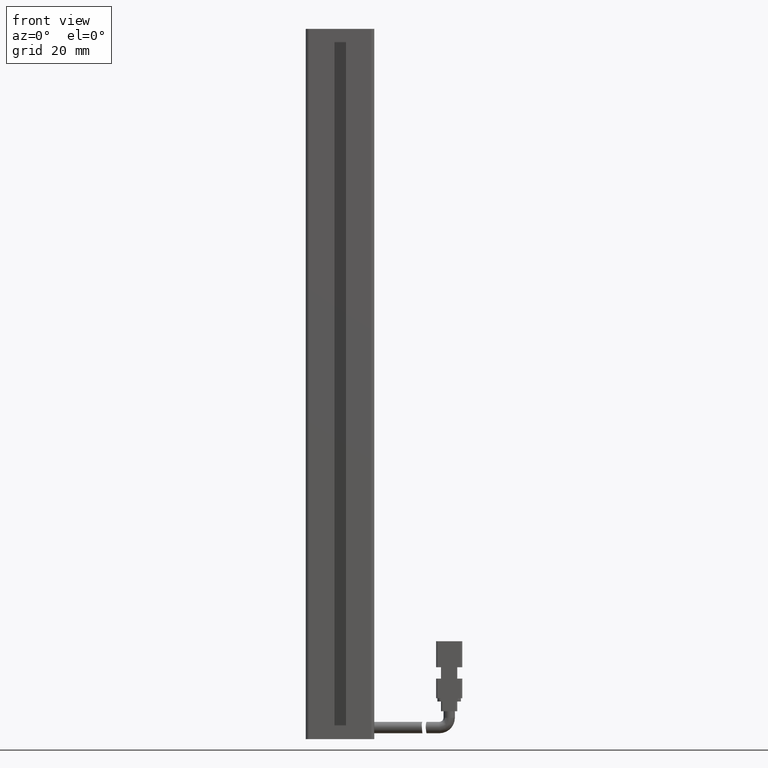
[diagram: clean part render]
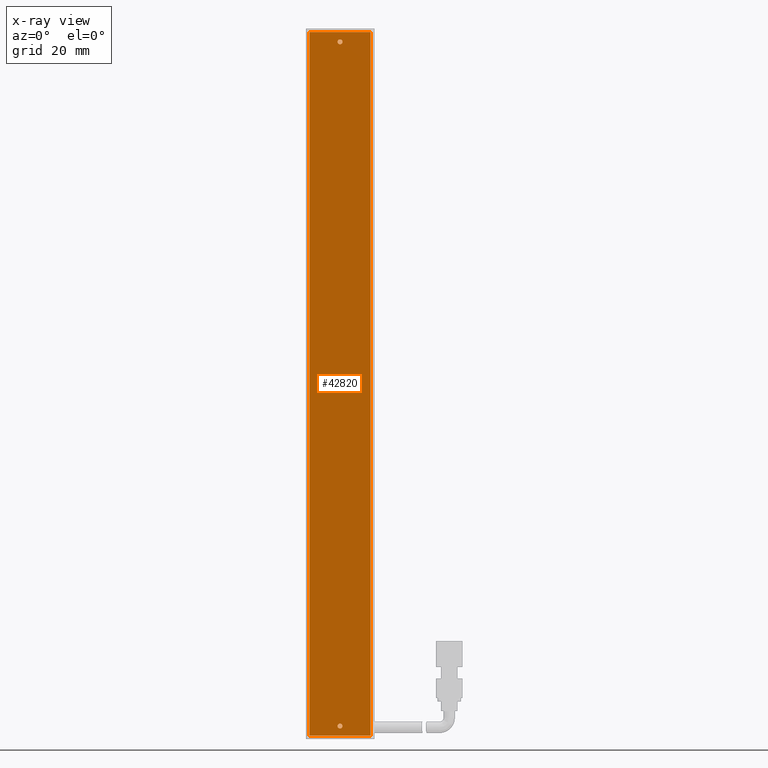
[diagram: x-ray — body ghosted, one internal face saturated and labeled with its STEP entity id]
A machine part, front view, then the same camera in x-ray: the body is ghosted and one INTERNAL B-rep face — a face not visible from any outside direction — is saturated and labeled: STEP entity #42820.
In plain terms, the highlighted planar face has unit normal (-0, 1, 0).
Its self-contained STEP definition (entity closure, byte-faithful):
#526 = LINE ( 'NONE', #14560, #18222 ) ;
#720 = FACE_BOUND ( 'NONE', #28527, .T. ) ;
#1345 = ORIENTED_EDGE ( 'NONE', *, *, #17119, .F. ) ;
#1915 = VECTOR ( 'NONE', #14967, 1000.000000000000000 ) ;
#2809 = CIRCLE ( 'NONE', #16070, 0.7500000000000006700 ) ;
#2921 = EDGE_CURVE ( 'NONE', #38463, #40252, #24808, .T. ) ;
#3285 = AXIS2_PLACEMENT_3D ( 'NONE', #6330, #14241, #18782 ) ;
#3453 = CARTESIAN_POINT ( 'NONE',  ( 50.27537974683542600, 32.09073232304837100, -7.000000000000006200 ) ) ;
#3562 = DIRECTION ( 'NONE',  ( 0.0000000000000000000, 0.0000000000000000000, 1.000000000000000000 ) ) ;
#4278 = CIRCLE ( 'NONE', #33897, 0.7500000000000006700 ) ;
#4717 = DIRECTION ( 'NONE',  ( -0.0000000000000000000, -1.000000000000000000, -0.0000000000000000000 ) ) ;
#4883 = CARTESIAN_POINT ( 'NONE',  ( 31.57537974683539900, 32.09073232304837100, -223.0000000000000000 ) ) ;
#5682 = EDGE_CURVE ( 'NONE', #23849, #46217, #15129, .T. ) ;
#6114 = ORIENTED_EDGE ( 'NONE', *, *, #41738, .F. ) ;
#6166 = ORIENTED_EDGE ( 'NONE', *, *, #32990, .F. ) ;
#6248 = LINE ( 'NONE', #28412, #45681 ) ;
#6330 = CARTESIAN_POINT ( 'NONE',  ( 40.92537974683541800, 32.09073232304837100, -10.00000000000000900 ) ) ;
#7118 = LINE ( 'NONE', #14604, #1915 ) ;
#7183 = ORIENTED_EDGE ( 'NONE', *, *, #5682, .F. ) ;
#7466 = CIRCLE ( 'NONE', #3285, 0.7500000000000006700 ) ;
#7509 = DIRECTION ( 'NONE',  ( 1.000000000000000000, 0.0000000000000000000, -1.548860246407863500E-017 ) ) ;
#12013 = VERTEX_POINT ( 'NONE', #31245 ) ;
#14218 = CARTESIAN_POINT ( 'NONE',  ( 50.27537974683541900, 32.09073232304837100, -223.0000000000000000 ) ) ;
#14241 = DIRECTION ( 'NONE',  ( -0.0000000000000000000, -1.000000000000000000, -0.0000000000000000000 ) ) ;
#14560 = CARTESIAN_POINT ( 'NONE',  ( 31.57537974683539900, 32.09073232304837100, -7.000000000000006200 ) ) ;
#14604 = CARTESIAN_POINT ( 'NONE',  ( 50.27537974683542600, 32.09073232304837100, -7.000000000000006200 ) ) ;
#14967 = DIRECTION ( 'NONE',  ( -1.548860246407863500E-017, -0.0000000000000000000, -1.000000000000000000 ) ) ;
#15129 = LINE ( 'NONE', #14218, #19052 ) ;
#15731 = DIRECTION ( 'NONE',  ( -0.0000000000000000000, 1.000000000000000000, 0.0000000000000000000 ) ) ;
#15776 = FACE_BOUND ( 'NONE', #33164, .T. ) ;
#16070 = AXIS2_PLACEMENT_3D ( 'NONE', #53998, #45409, #24402 ) ;
#16097 = PLANE ( 'NONE',  #37628 ) ;
#16827 = CARTESIAN_POINT ( 'NONE',  ( 40.92537974683539700, 32.09073232304837100, -220.0000000000000000 ) ) ;
#17119 = EDGE_CURVE ( 'NONE', #36732, #12013, #6248, .T. ) ;
#18147 = CARTESIAN_POINT ( 'NONE',  ( 40.92537974683541800, 32.09073232304837100, -10.75000000000000900 ) ) ;
#18222 = VECTOR ( 'NONE', #22796, 1000.000000000000000 ) ;
#18782 = DIRECTION ( 'NONE',  ( 0.0000000000000000000, 0.0000000000000000000, 1.000000000000000000 ) ) ;
#19052 = VECTOR ( 'NONE', #46953, 1000.000000000000000 ) ;
#20403 = CARTESIAN_POINT ( 'NONE',  ( 40.92537974683541800, 32.09073232304837100, -10.00000000000000900 ) ) ;
#22454 = EDGE_LOOP ( 'NONE', ( #49105, #7183, #6114, #1345 ) ) ;
#22796 = DIRECTION ( 'NONE',  ( 1.548860246407863500E-017, 0.0000000000000000000, 1.000000000000000000 ) ) ;
#23849 = VERTEX_POINT ( 'NONE', #38733 ) ;
#24402 = DIRECTION ( 'NONE',  ( 0.0000000000000000000, 0.0000000000000000000, 1.000000000000000000 ) ) ;
#24667 = CARTESIAN_POINT ( 'NONE',  ( 40.92537974683539700, 32.09073232304837100, -219.2500000000000000 ) ) ;
#24808 = CIRCLE ( 'NONE', #29719, 0.7500000000000006700 ) ;
#26002 = DIRECTION ( 'NONE',  ( 0.0000000000000000000, 0.0000000000000000000, 1.000000000000000000 ) ) ;
#26386 = CARTESIAN_POINT ( 'NONE',  ( 31.57537974683542000, 32.09073232304837100, -7.000000000000006200 ) ) ;
#28412 = CARTESIAN_POINT ( 'NONE',  ( 50.27537974683542600, 32.09073232304837100, -7.000000000000006200 ) ) ;
#28527 = EDGE_LOOP ( 'NONE', ( #52307, #44190 ) ) ;
#28954 = DIRECTION ( 'NONE',  ( 1.548860246407863500E-017, 0.0000000000000000000, 1.000000000000000000 ) ) ;
#29719 = AXIS2_PLACEMENT_3D ( 'NONE', #16827, #4717, #26002 ) ;
#31245 = CARTESIAN_POINT ( 'NONE',  ( 50.27537974683542600, 32.09073232304837100, -7.000000000000006200 ) ) ;
#32990 = EDGE_CURVE ( 'NONE', #40252, #38463, #2809, .T. ) ;
#33164 = EDGE_LOOP ( 'NONE', ( #46878, #6166 ) ) ;
#33762 = CARTESIAN_POINT ( 'NONE',  ( 40.92537974683541800, 32.09073232304837100, -9.250000000000008900 ) ) ;
#33897 = AXIS2_PLACEMENT_3D ( 'NONE', #20403, #53684, #3562 ) ;
#36732 = VERTEX_POINT ( 'NONE', #26386 ) ;
#37628 = AXIS2_PLACEMENT_3D ( 'NONE', #3453, #15731, #28954 ) ;
#38463 = VERTEX_POINT ( 'NONE', #24667 ) ;
#38733 = CARTESIAN_POINT ( 'NONE',  ( 50.27537974683540500, 32.09073232304837100, -223.0000000000000000 ) ) ;
#39772 = CARTESIAN_POINT ( 'NONE',  ( 40.92537974683539700, 32.09073232304837100, -220.7500000000000000 ) ) ;
#40252 = VERTEX_POINT ( 'NONE', #39772 ) ;
#40798 = FACE_OUTER_BOUND ( 'NONE', #22454, .T. ) ;
#41105 = VERTEX_POINT ( 'NONE', #18147 ) ;
#41738 = EDGE_CURVE ( 'NONE', #12013, #23849, #7118, .T. ) ;
#42820 = ADVANCED_FACE ( 'NONE', ( #40798, #720, #15776 ), #16097, .F. ) ;
#44190 = ORIENTED_EDGE ( 'NONE', *, *, #44677, .F. ) ;
#44403 = EDGE_CURVE ( 'NONE', #52516, #41105, #4278, .T. ) ;
#44677 = EDGE_CURVE ( 'NONE', #41105, #52516, #7466, .T. ) ;
#45409 = DIRECTION ( 'NONE',  ( -0.0000000000000000000, -1.000000000000000000, -0.0000000000000000000 ) ) ;
#45681 = VECTOR ( 'NONE', #7509, 1000.000000000000000 ) ;
#46217 = VERTEX_POINT ( 'NONE', #4883 ) ;
#46878 = ORIENTED_EDGE ( 'NONE', *, *, #2921, .F. ) ;
#46953 = DIRECTION ( 'NONE',  ( -1.000000000000000000, -0.0000000000000000000, 1.548860246407863500E-017 ) ) ;
#49105 = ORIENTED_EDGE ( 'NONE', *, *, #53224, .F. ) ;
#52307 = ORIENTED_EDGE ( 'NONE', *, *, #44403, .F. ) ;
#52516 = VERTEX_POINT ( 'NONE', #33762 ) ;
#53224 = EDGE_CURVE ( 'NONE', #46217, #36732, #526, .T. ) ;
#53684 = DIRECTION ( 'NONE',  ( -0.0000000000000000000, -1.000000000000000000, -0.0000000000000000000 ) ) ;
#53998 = CARTESIAN_POINT ( 'NONE',  ( 40.92537974683539700, 32.09073232304837100, -220.0000000000000000 ) ) ;